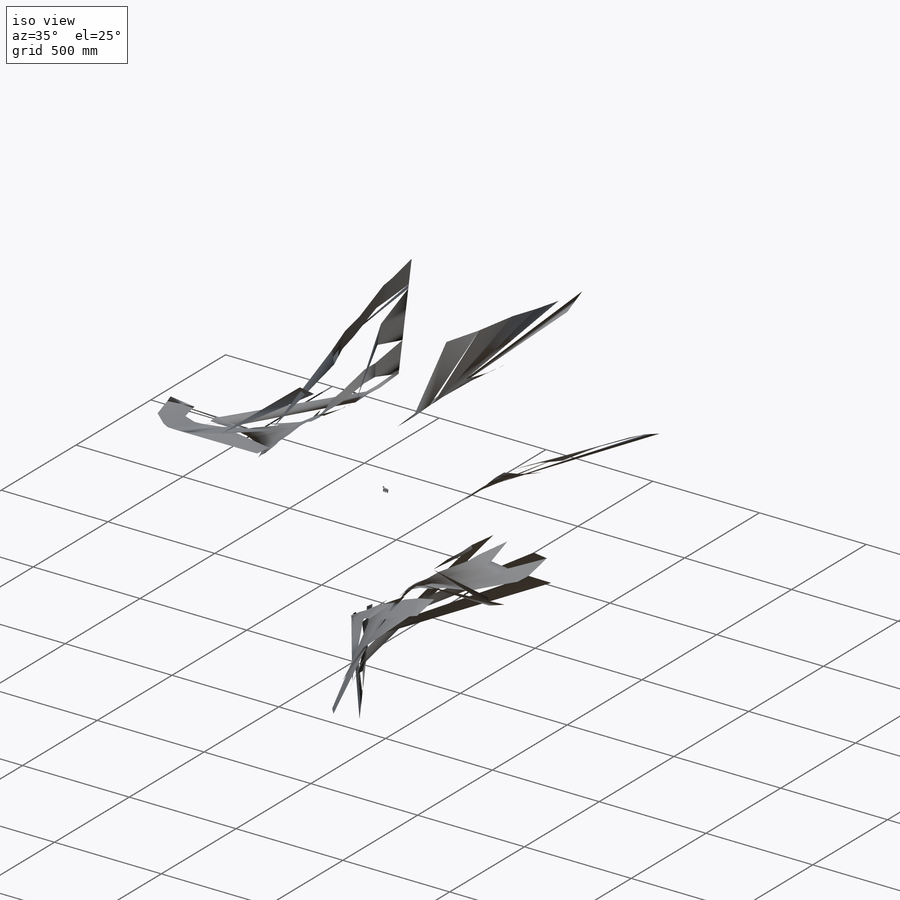
[diagram: iso view]
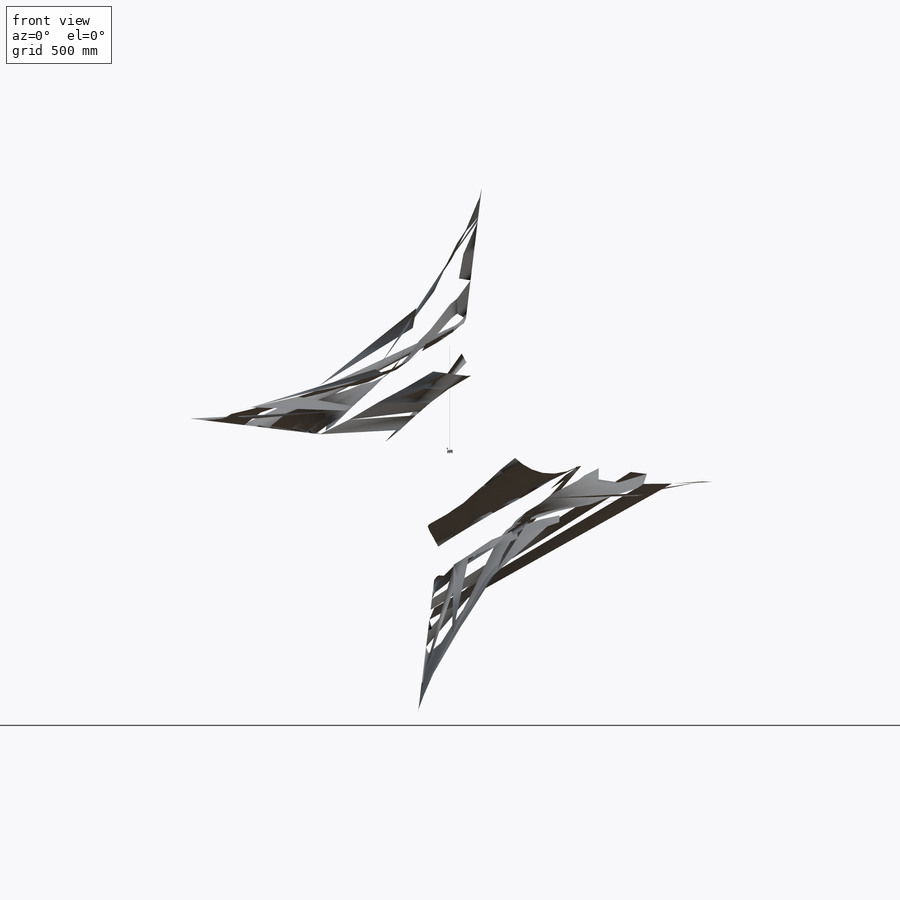
[diagram: front view]
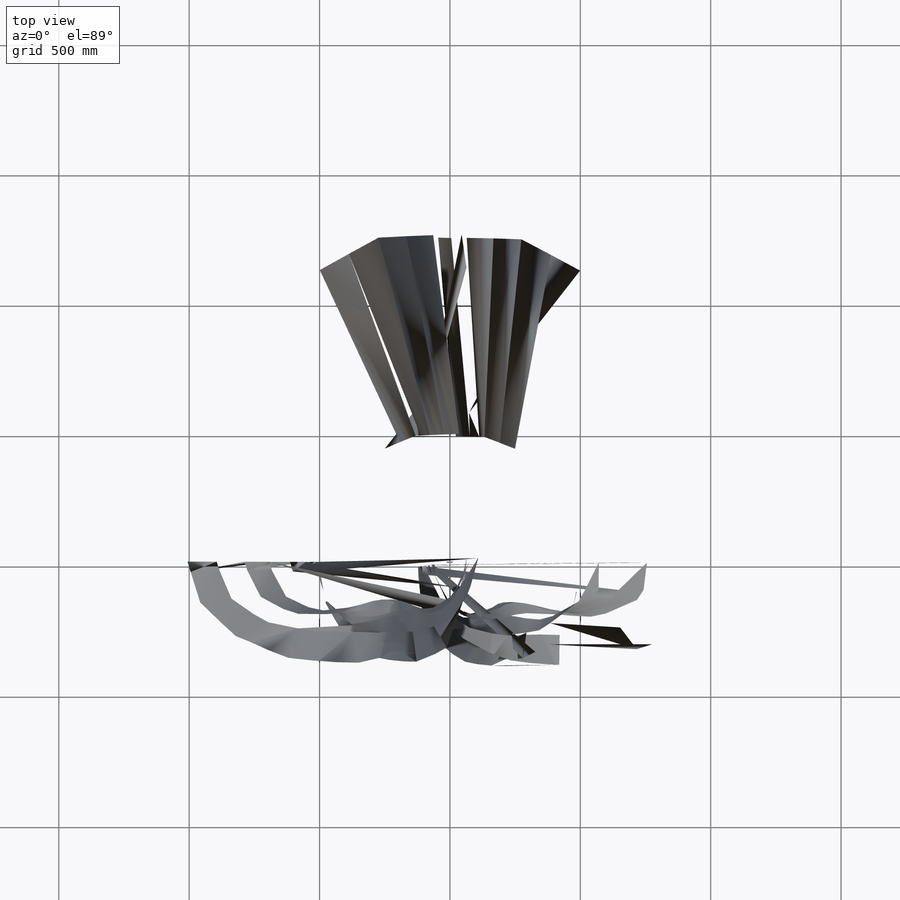
[diagram: top view]
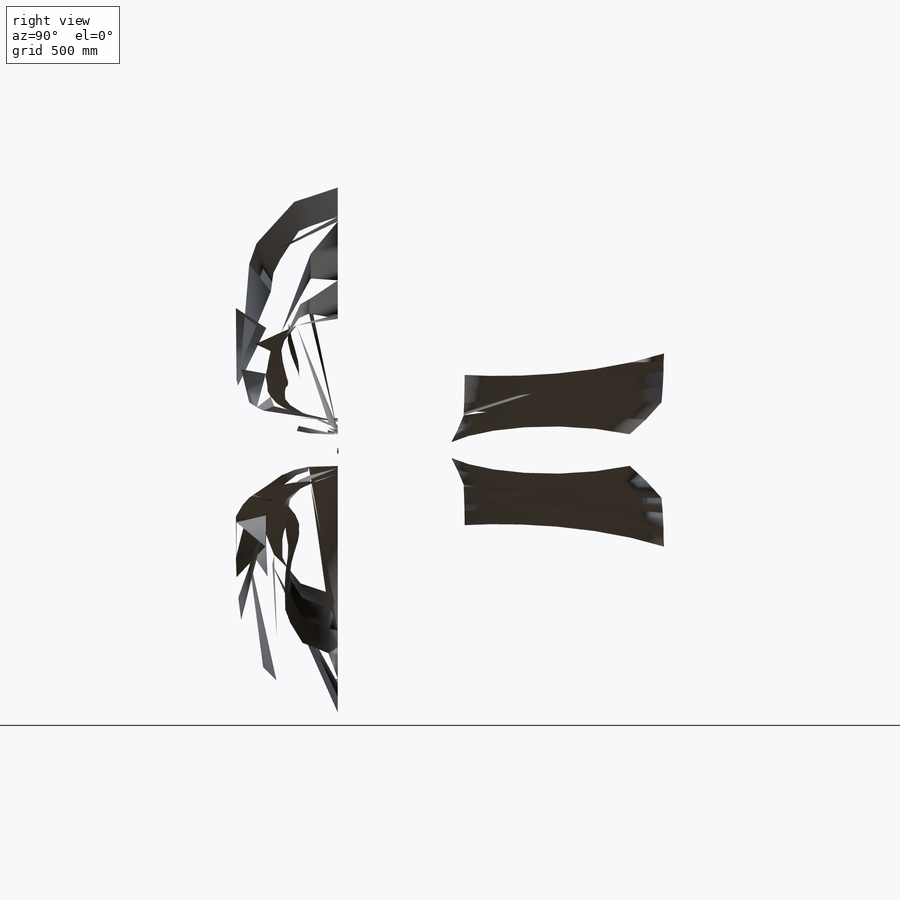
[diagram: right view]
SOLIDWORKS PART (.sldprt)
format: sldprt  version: not decoded by parser v0  size: 1,388,032 bytes
history: native  units: mm
features: sketch x18, extrude x11, fillet x8, cut_extrude x7, plane x3, material x1, mirror x1, boolean_combine x1 (+9 scaffold rows collapsed)
feature tree (59):
  scaffold x9  (default folders/planes/origin — collapsed)
  material  "Material <não especificado>"
  plane  "Plano frontal"
  plane  "Plano superior"
  plane  "Plano direito"
  sketch  "Esboço1"  dims[c1.D3=1.0mm c1.D4=0.5mm c1.D5=1.0mm c1.D1=~14.927319mm c1.D2=~81.190051mm c2.D1=11.5mm c2.D2=20.55mm c2.D5=~4.100466mm c2.D6=0.5mm c2.D7=8.5mm c2.D8=1.0mm c2.D9=6.5mm]
  extrude  "Ressalto-extrusão1"  Depth=5.975mm
  sketch  "Esboço2"  dims[c1.D1=0.5mm c1.D2=1.975mm c1.D4=2.95mm c2.D1=~2.759298mm c2.D3=2.5mm c2.D4=~8.225519mm c2.D5=3.6mm c2.D6=~5.22007mm c3.D5=3.6mm]
  extrude  "Ressalto-extrusão2"  Depth=0.1375mm
  mirror  "Espelhar1"
  boolean_combine  "Combinar1"
  sketch  "Esboço3"  dims[D1=3.95mm]
  extrude  "Ressalto-extrusão3"  [1 undecoded]
  fillet  "Filete1"  Radius=0.1mm
  sketch  "Esboço4"  dims[D1=2.95mm D2=~12.162292mm]
  cut_extrude  "Corte-extrusão3"  [1 undecoded]
  fillet  "Filete2"  Radius=0.5mm
  sketch  "Esboço5"  dims[c1.D1=~3.497249mm c1.D2=~0.834206mm c2.D1=~3.497249mm c2.D2=~1.090885mm c3.D1=~2.919722mm c3.D2=~0.705867mm c4.D1=3.35mm c4.D2=1.55mm c4.D3=6.95mm c4.D4=0.45mm c4.D5=1.55mm]
  extrude  "Ressalto-extrusão4"  Depth=4mm
  sketch  "Esboço6"  dims[D1=1.5mm D2=1.5mm]
  cut_extrude  "Corte-extrusão4"  [1 undecoded]
  fillet  "Filete3"  Radius=0.2mm
  fillet  "Filete4"  Radius=0.2mm
  fillet  "Filete5"  Radius=0.2mm
  sketch  "Esboço7"  dims[c1.D1=~0.549586mm c1.D2=5.975mm c1.D6=1.0mm c1.D7=0.5mm c1.D9=5.05mm c2.D1=0.45mm c2.D2=~4.76378mm c2.D3=3.0mm c2.D4=24.55mm c3.D2=5.975mm c3.D5=22.6mm c3.D8=0.5mm c3.D9=4.0mm]
  extrude  "Ressalto-extrusão5"  Depth=4.15mm
  sketch  "Esboço9"  dims[c1.D1=~0.708841mm c1.D2=~2.027467mm c2.D1=0.45mm c2.D2=4.5mm]
  cut_extrude  "Corte-extrusão6"  [1 undecoded]
  sketch  "Esboço8"  dims[D1=1.0mm]
  extrude  "Ressalto-extrusão6"  Depth=4mm
  fillet  "Filete6"  Radius=0.1mm
  sketch  "Esboço10"  dims[c1.D1=6.6748mm c1.D2=~0.974937mm c2.D1=1.0mm c2.D2=7.0mm c2.D3=0.5mm]
  cut_extrude  "Corte-extrusão7"  [1 undecoded]
  sketch  "Esboço12"  dims[D1=4.0mm]
  extrude  "Ressalto-extrusão7"  [1 undecoded]
  sketch  "Esboço13"  dims[c1.D1=~3.217145mm c1.D2=~2.438151mm c2.D1=1.0mm c2.D2=1.0mm]
  cut_extrude  "Corte-extrusão8"  Depth=5mm
  fillet  "Filete7"  Radius=0.1mm
  sketch  "Esboço14"  dims[D1=1.0mm]
  extrude  "Ressalto-extrusão8"  Depth=3mm
  sketch  "Esboço15"  dims[D1=~1.598742mm]
  cut_extrude  "Corte-extrusão9"  [1 undecoded]
  sketch  "Esboço16"  dims[D1=0.9mm]
  extrude  "Ressalto-extrusão9"  Depth=4.5mm
  sketch  "Esboço17"  dims[D1=2.3mm D2=2.0mm D3=1.7mm]
  cut_extrude  "Corte-extrusão10"  [1 undecoded]
  sketch  "Esboço18"  dims[D1=2.3mm]
  extrude  "Ressalto-extrusão10"  [1 undecoded]
  fillet  "Filete8"  Radius=0.1mm
  sketch  "Esboço20"  dims[D1=1.0mm D2=0.75mm D3=0.75mm]
  extrude  "Ressalto-extrusão11"  Depth=1.5mm
decode coverage: 35 of 46 modeling features carry decoded parameters
note: ~ marks probable driven/reference dimensions
note: 9 parameter values undecoded
summary: no parameter record found for 9 features
note: suppression state not decoded; provenance and decode notes live in map.json
